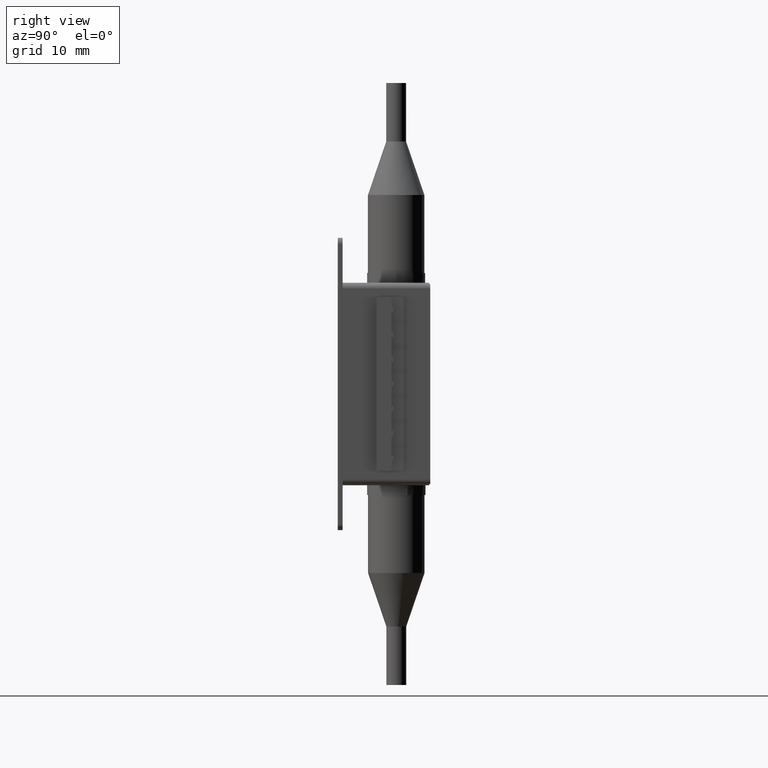
[diagram: clean part render]
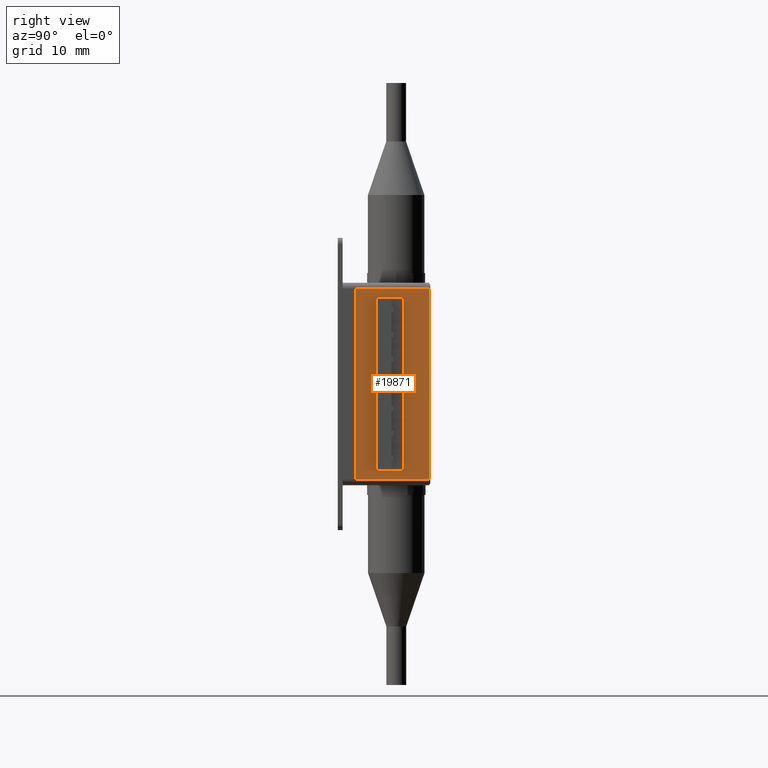
[diagram: same view with one face highlighted and labeled with its STEP entity id]
A machine part, right view. The second image highlights one B-rep face of the part: STEP entity #19871.
In plain terms, the highlighted planar face has unit normal (-1, -0, 0).
Its self-contained STEP definition (entity closure, byte-faithful):
#625 = ORIENTED_EDGE ( 'NONE', *, *, #19527, .T. ) ;
#763 = VECTOR ( 'NONE', #21242, 1000.000000000000000 ) ;
#834 = CARTESIAN_POINT ( 'NONE',  ( -97.46018484201830745, 23.90485114794374510, 31.89721449318330571 ) ) ;
#1134 = VERTEX_POINT ( 'NONE', #11005 ) ;
#1251 = CARTESIAN_POINT ( 'NONE',  ( -97.46018484201830745, 16.30485114794375079, 52.09721449318330855 ) ) ;
#1481 = CARTESIAN_POINT ( 'NONE',  ( -97.46018484201830745, 23.90485114794374510, 52.09721449318330855 ) ) ;
#2333 = CARTESIAN_POINT ( 'NONE',  ( -97.46018484201830745, 18.47485114794374539, 32.80721449318330230 ) ) ;
#2353 = CARTESIAN_POINT ( 'NONE',  ( -97.46018484201830745, 23.90485114794374510, 52.09721449318330855 ) ) ;
#2386 = EDGE_CURVE ( 'NONE', #15587, #13664, #4247, .T. ) ;
#2829 = DIRECTION ( 'NONE',  ( -2.282530889443167515E-16, 1.000000000000000000, -1.554411716825096102E-16 ) ) ;
#2947 = VECTOR ( 'NONE', #11880, 1000.000000000000000 ) ;
#3193 = VERTEX_POINT ( 'NONE', #2333 ) ;
#4106 = CARTESIAN_POINT ( 'NONE',  ( -97.46018484201830745, 21.26485114794374098, 32.80721449318330230 ) ) ;
#4247 = LINE ( 'NONE', #1481, #7670 ) ;
#4323 = EDGE_LOOP ( 'NONE', ( #7446, #16374, #7431, #15180 ) ) ;
#5208 = CARTESIAN_POINT ( 'NONE',  ( -97.46018484201830745, 16.30485114794375079, 51.49721449318330713 ) ) ;
#5369 = ORIENTED_EDGE ( 'NONE', *, *, #16633, .T. ) ;
#5543 = EDGE_CURVE ( 'NONE', #7775, #1134, #19804, .T. ) ;
#5711 = DIRECTION ( 'NONE',  ( -1.000000000000000000, -2.282530889443167515E-16, 0.0000000000000000000 ) ) ;
#5717 = EDGE_CURVE ( 'NONE', #3193, #7775, #9292, .T. ) ;
#6466 = VERTEX_POINT ( 'NONE', #19128 ) ;
#6491 = FACE_OUTER_BOUND ( 'NONE', #6945, .T. ) ;
#6567 = EDGE_CURVE ( 'NONE', #1134, #12943, #8424, .T. ) ;
#6945 = EDGE_LOOP ( 'NONE', ( #16155, #5369, #625, #20772 ) ) ;
#7332 = LINE ( 'NONE', #1251, #763 ) ;
#7431 = ORIENTED_EDGE ( 'NONE', *, *, #14971, .F. ) ;
#7432 = DIRECTION ( 'NONE',  ( -2.282530889443167515E-16, 1.000000000000000000, 0.0000000000000000000 ) ) ;
#7446 = ORIENTED_EDGE ( 'NONE', *, *, #5543, .F. ) ;
#7540 = LINE ( 'NONE', #834, #12224 ) ;
#7670 = VECTOR ( 'NONE', #21624, 1000.000000000000000 ) ;
#7702 = AXIS2_PLACEMENT_3D ( 'NONE', #2353, #5711, #17424 ) ;
#7758 = CARTESIAN_POINT ( 'NONE',  ( -97.46018484201830745, 21.26485114794373388, 50.58721449318330343 ) ) ;
#7775 = VERTEX_POINT ( 'NONE', #4106 ) ;
#8424 = LINE ( 'NONE', #7758, #21282 ) ;
#8996 = CARTESIAN_POINT ( 'NONE',  ( -97.46018484201830745, 21.26485114794374098, 32.80721449318330230 ) ) ;
#9292 = LINE ( 'NONE', #13023, #18463 ) ;
#10133 = DIRECTION ( 'NONE',  ( 2.282530889443167515E-16, -1.000000000000000000, -0.0000000000000000000 ) ) ;
#10681 = DIRECTION ( 'NONE',  ( 0.0000000000000000000, 0.0000000000000000000, 1.000000000000000000 ) ) ;
#11005 = CARTESIAN_POINT ( 'NONE',  ( -97.46018484201830745, 21.26485114794374809, 50.58721449318330343 ) ) ;
#11138 = VECTOR ( 'NONE', #10681, 1000.000000000000000 ) ;
#11750 = LINE ( 'NONE', #5208, #20411 ) ;
#11880 = DIRECTION ( 'NONE',  ( 0.0000000000000000000, 0.0000000000000000000, -1.000000000000000000 ) ) ;
#12224 = VECTOR ( 'NONE', #7432, 1000.000000000000000 ) ;
#12366 = PLANE ( 'NONE',  #7702 ) ;
#12943 = VERTEX_POINT ( 'NONE', #14730 ) ;
#13023 = CARTESIAN_POINT ( 'NONE',  ( -97.46018484201830745, 21.26485114794373388, 32.80721449318330230 ) ) ;
#13630 = EDGE_CURVE ( 'NONE', #14542, #13664, #7540, .T. ) ;
#13664 = VERTEX_POINT ( 'NONE', #17595 ) ;
#14542 = VERTEX_POINT ( 'NONE', #16513 ) ;
#14730 = CARTESIAN_POINT ( 'NONE',  ( -97.46018484201830745, 18.47485114794374539, 50.58721449318330343 ) ) ;
#14971 = EDGE_CURVE ( 'NONE', #12943, #3193, #19999, .T. ) ;
#15180 = ORIENTED_EDGE ( 'NONE', *, *, #6567, .F. ) ;
#15587 = VERTEX_POINT ( 'NONE', #16105 ) ;
#16105 = CARTESIAN_POINT ( 'NONE',  ( -97.46018484201830745, 23.90485114794374510, 51.49721449318330713 ) ) ;
#16155 = ORIENTED_EDGE ( 'NONE', *, *, #2386, .F. ) ;
#16374 = ORIENTED_EDGE ( 'NONE', *, *, #5717, .F. ) ;
#16513 = CARTESIAN_POINT ( 'NONE',  ( -97.46018484201830745, 16.30485114794375079, 31.89721449318330571 ) ) ;
#16633 = EDGE_CURVE ( 'NONE', #15587, #6466, #11750, .T. ) ;
#17424 = DIRECTION ( 'NONE',  ( 2.282530889443167515E-16, -1.000000000000000000, 0.0000000000000000000 ) ) ;
#17595 = CARTESIAN_POINT ( 'NONE',  ( -97.46018484201830745, 23.90485114794374510, 31.89721449318330571 ) ) ;
#18463 = VECTOR ( 'NONE', #2829, 1000.000000000000000 ) ;
#19128 = CARTESIAN_POINT ( 'NONE',  ( -97.46018484201830745, 16.30485114794375079, 51.49721449318330713 ) ) ;
#19483 = DIRECTION ( 'NONE',  ( 2.282530889443167515E-16, -1.000000000000000000, 1.243529373460076882E-15 ) ) ;
#19527 = EDGE_CURVE ( 'NONE', #6466, #14542, #7332, .T. ) ;
#19804 = LINE ( 'NONE', #8996, #11138 ) ;
#19871 = ADVANCED_FACE ( 'NONE', ( #20113, #6491 ), #12366, .F. ) ;
#19999 = LINE ( 'NONE', #20393, #2947 ) ;
#20113 = FACE_BOUND ( 'NONE', #4323, .T. ) ;
#20393 = CARTESIAN_POINT ( 'NONE',  ( -97.46018484201830745, 18.47485114794374539, 32.80721449318330230 ) ) ;
#20411 = VECTOR ( 'NONE', #10133, 1000.000000000000000 ) ;
#20772 = ORIENTED_EDGE ( 'NONE', *, *, #13630, .T. ) ;
#21242 = DIRECTION ( 'NONE',  ( -0.0000000000000000000, -0.0000000000000000000, -1.000000000000000000 ) ) ;
#21282 = VECTOR ( 'NONE', #19483, 1000.000000000000000 ) ;
#21624 = DIRECTION ( 'NONE',  ( -0.0000000000000000000, -0.0000000000000000000, -1.000000000000000000 ) ) ;